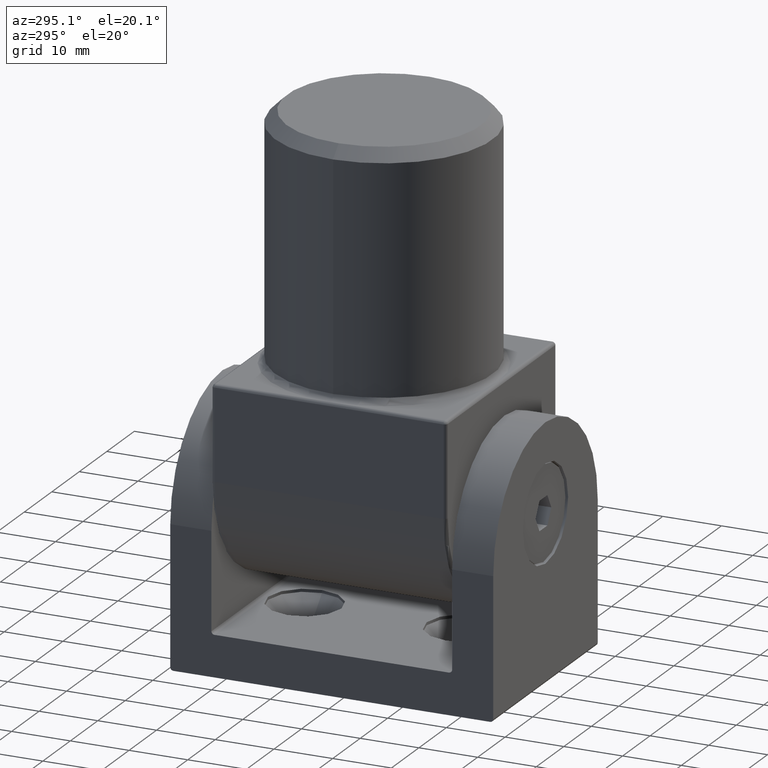
[diagram: clean part render]
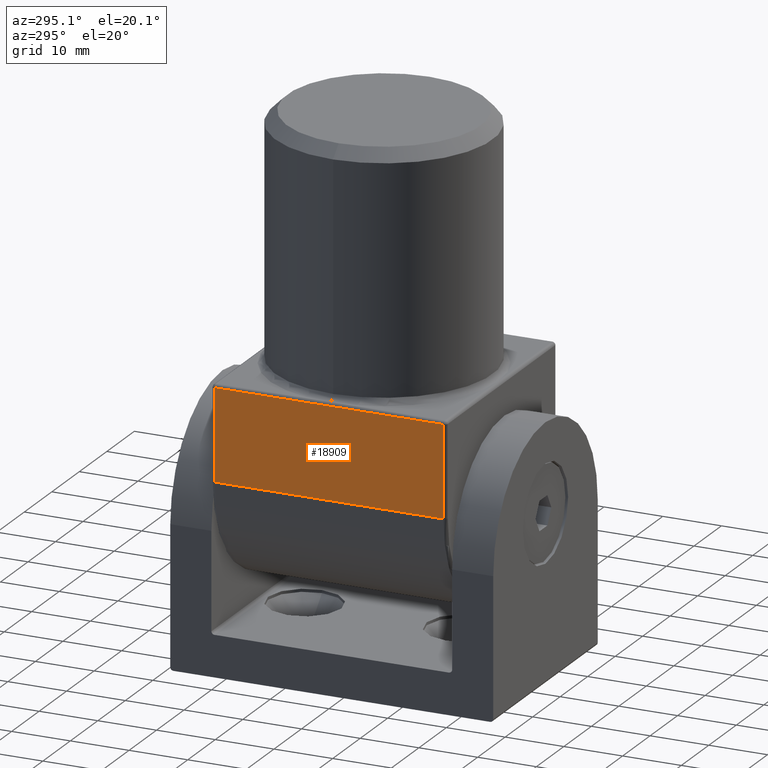
[diagram: same view with one face highlighted and labeled with its STEP entity id]
A machine part, auxiliary view. The second image highlights one B-rep face of the part: STEP entity #18909.
In plain terms, the highlighted planar face has unit normal (1, 0, -0).
Its self-contained STEP definition (entity closure, byte-faithful):
#379 = LINE ( 'NONE', #17683, #13433 ) ;
#1233 = EDGE_CURVE ( 'NONE', #16110, #14013, #379, .T. ) ;
#1339 = VERTEX_POINT ( 'NONE', #3080 ) ;
#1582 = ORIENTED_EDGE ( 'NONE', *, *, #2884, .T. ) ;
#2284 = ORIENTED_EDGE ( 'NONE', *, *, #1233, .T. ) ;
#2884 = EDGE_CURVE ( 'NONE', #1339, #16110, #19779, .T. ) ;
#3080 = CARTESIAN_POINT ( 'NONE',  ( -20.00000000000000000, -19.50000000000000000, -0.4999999999999998890 ) ) ;
#3511 = DIRECTION ( 'NONE',  ( -0.000000000000000000, -1.000000000000000000, -0.000000000000000000 ) ) ;
#4255 = VERTEX_POINT ( 'NONE', #11896 ) ;
#4432 = DIRECTION ( 'NONE',  ( 1.000000000000000000, 0.000000000000000000, -2.168404344971010347E-16 ) ) ;
#5357 = LINE ( 'NONE', #19186, #6308 ) ;
#6308 = VECTOR ( 'NONE', #3511, 1000.000000000000000 ) ;
#6974 = EDGE_CURVE ( 'NONE', #4255, #1339, #12501, .T. ) ;
#7319 = VECTOR ( 'NONE', #10201, 1000.000000000000000 ) ;
#7356 = PLANE ( 'NONE',  #7655 ) ;
#7435 = EDGE_CURVE ( 'NONE', #14013, #4255, #5357, .T. ) ;
#7655 = AXIS2_PLACEMENT_3D ( 'NONE', #8931, #4432, #12304 ) ;
#8024 = DIRECTION ( 'NONE',  ( -0.000000000000000000, 1.000000000000000000, -0.000000000000000000 ) ) ;
#8291 = DIRECTION ( 'NONE',  ( -2.168404344971010347E-16, -0.000000000000000000, -1.000000000000000000 ) ) ;
#8931 = CARTESIAN_POINT ( 'NONE',  ( -20.00000000000000355, 20.00000000000000000, -15.99999999999998934 ) ) ;
#8976 = VECTOR ( 'NONE', #8024, 1000.000000000000000 ) ;
#10201 = DIRECTION ( 'NONE',  ( 2.168404344971010347E-16, -0.000000000000000000, 1.000000000000000000 ) ) ;
#10585 = ORIENTED_EDGE ( 'NONE', *, *, #6974, .T. ) ;
#10858 = ORIENTED_EDGE ( 'NONE', *, *, #7435, .T. ) ;
#11205 = CARTESIAN_POINT ( 'NONE',  ( -20.00000000000000000, 20.00000000000000000, -0.5000000000000004441 ) ) ;
#11580 = CARTESIAN_POINT ( 'NONE',  ( -20.00000000000000000, 19.50000000000000000, -0.4999999999999998890 ) ) ;
#11896 = CARTESIAN_POINT ( 'NONE',  ( -20.00000000000000355, -19.50000000000000000, -15.99999999999999645 ) ) ;
#12304 = DIRECTION ( 'NONE',  ( -2.168404344971010347E-16, 0.000000000000000000, -1.000000000000000000 ) ) ;
#12501 = LINE ( 'NONE', #16554, #7319 ) ;
#12641 = EDGE_LOOP ( 'NONE', ( #10858, #10585, #1582, #2284 ) ) ;
#13433 = VECTOR ( 'NONE', #8291, 1000.000000000000000 ) ;
#14013 = VERTEX_POINT ( 'NONE', #20097 ) ;
#16110 = VERTEX_POINT ( 'NONE', #11580 ) ;
#16554 = CARTESIAN_POINT ( 'NONE',  ( -20.00000000000000355, -19.50000000000000000, -15.99999999999998934 ) ) ;
#17683 = CARTESIAN_POINT ( 'NONE',  ( -20.00000000000000355, 19.50000000000000000, -15.99999999999999645 ) ) ;
#18204 = FACE_OUTER_BOUND ( 'NONE', #12641, .T. ) ;
#18909 = ADVANCED_FACE ( 'NONE', ( #18204 ), #7356, .F. ) ;
#19186 = CARTESIAN_POINT ( 'NONE',  ( -20.00000000000000355, 20.00000000000000000, -15.99999999999999645 ) ) ;
#19779 = LINE ( 'NONE', #11205, #8976 ) ;
#20097 = CARTESIAN_POINT ( 'NONE',  ( -20.00000000000000355, 19.50000000000000000, -15.99999999999999645 ) ) ;